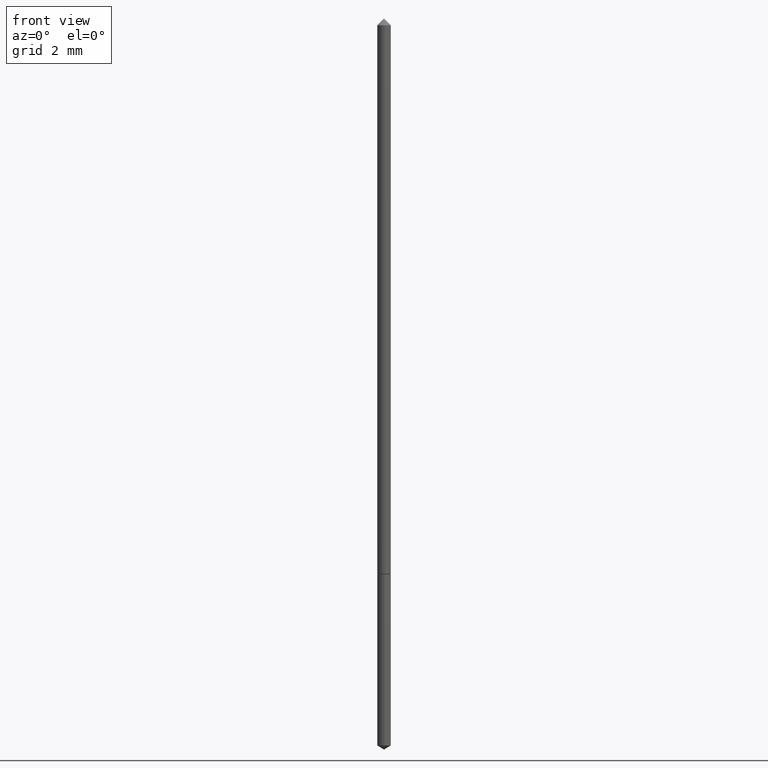
[diagram: clean part render]
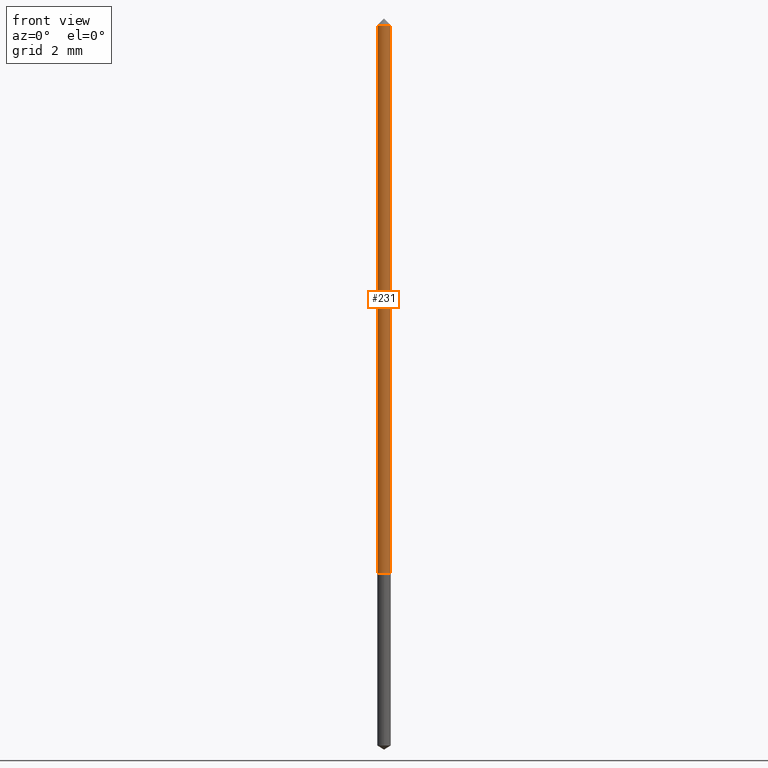
[diagram: same view with one face highlighted and labeled with its STEP entity id]
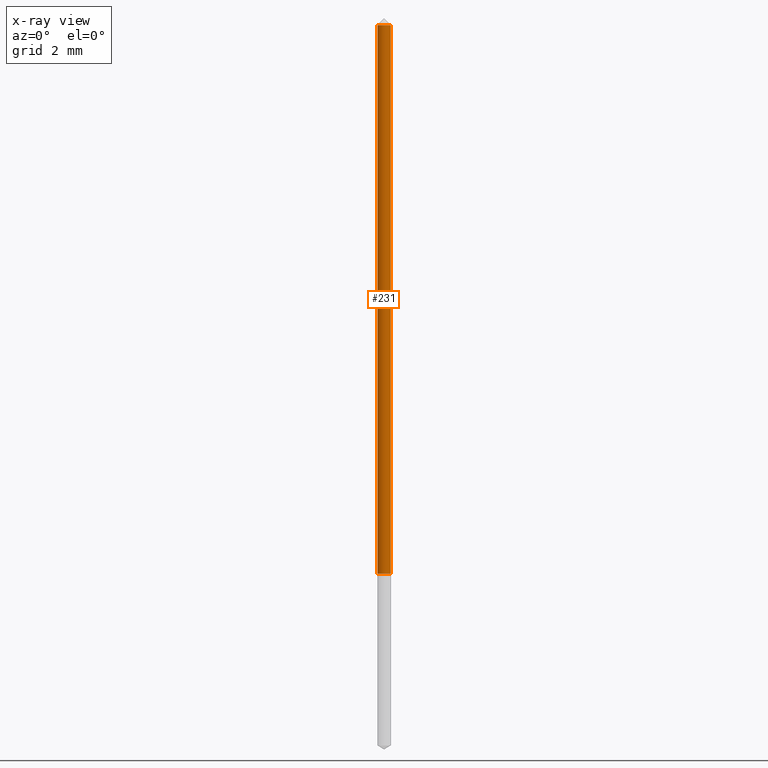
[diagram: x-ray of the same camera — body ghosted, the highlighted face saturated]
A machine part, front view. The second image highlights one B-rep face of the part: STEP entity #231.
The next image is the same camera in x-ray: the body ghosted, the highlighted face saturated — about 0% of this face is hidden behind the body in this view.
In plain terms, the highlighted cylindrical surface (edge-blend (fillet) strip) has radius 0.1715 mm, axis along (-0, 0, 1).
Its self-contained STEP definition (entity closure, byte-faithful):
#4 = ORIENTED_EDGE ( 'NONE', *, *, #35, .F. ) ;
#8 = DIRECTION ( 'NONE',  ( -2.445468806185136597E-29, 3.491481338843145583E-15, 1.000000000000000000 ) ) ;
#9 = EDGE_CURVE ( 'NONE', #336, #38, #234, .T. ) ;
#11 = ORIENTED_EDGE ( 'NONE', *, *, #42, .F. ) ;
#16 = EDGE_CURVE ( 'NONE', #38, #173, #151, .T. ) ;
#19 = DIRECTION ( 'NONE',  ( 1.000000000000000000, -6.982962677686267499E-15, 0.000000000000000000 ) ) ;
#35 = EDGE_CURVE ( 'NONE', #336, #305, #45, .T. ) ;
#38 = VERTEX_POINT ( 'NONE', #320 ) ;
#40 = DIRECTION ( 'NONE',  ( 1.000000000000000000, -6.982962677686260400E-15, 0.000000000000000000 ) ) ;
#42 = EDGE_CURVE ( 'NONE', #305, #173, #85, .T. ) ;
#45 = LINE ( 'NONE', #275, #191 ) ;
#54 = AXIS2_PLACEMENT_3D ( 'NONE', #331, #70, #159 ) ;
#70 = DIRECTION ( 'NONE',  ( -2.445468806185136597E-29, 3.491481338843145583E-15, 1.000000000000000000 ) ) ;
#85 = CIRCLE ( 'NONE', #122, 0.006750000000000004260 ) ;
#105 = CYLINDRICAL_SURFACE ( 'NONE', #54, 0.006750000000000037220 ) ;
#121 = DIRECTION ( 'NONE',  ( -2.445468806185136597E-29, 3.491481338843145583E-15, 1.000000000000000000 ) ) ;
#122 = AXIS2_PLACEMENT_3D ( 'NONE', #149, #121, #19 ) ;
#136 = VECTOR ( 'NONE', #296, 39.37007874015748143 ) ;
#149 = CARTESIAN_POINT ( 'NONE',  ( 7.642090019328600035E-31, -1.091087918388489897E-16, -0.03125000000000020123 ) ) ;
#151 = LINE ( 'NONE', #297, #136 ) ;
#159 = DIRECTION ( 'NONE',  ( 1.000000000000000000, -6.982962677686265922E-15, 4.876176775795935793E-29 ) ) ;
#173 = VERTEX_POINT ( 'NONE', #196 ) ;
#191 = VECTOR ( 'NONE', #207, 39.37007874015748143 ) ;
#196 = CARTESIAN_POINT ( 'NONE',  ( 0.006750000000000004260, -1.562437899132313240E-16, -0.03125000000000020123 ) ) ;
#199 = CARTESIAN_POINT ( 'NONE',  ( -0.006750000000000070180, -1.961385875840423280E-15, -0.5755000000000001226 ) ) ;
#207 = DIRECTION ( 'NONE',  ( -2.445468806185136877E-29, 3.491481338843145188E-15, 1.000000000000000000 ) ) ;
#216 = CARTESIAN_POINT ( 'NONE',  ( 1.407367297959546289E-29, -2.009347510504230677E-15, -0.5755000000000001226 ) ) ;
#217 = FACE_OUTER_BOUND ( 'NONE', #249, .T. ) ;
#228 = AXIS2_PLACEMENT_3D ( 'NONE', #216, #8, #40 ) ;
#231 = ADVANCED_FACE ( 'NONE', ( #217 ), #105, .T. ) ;
#232 = CARTESIAN_POINT ( 'NONE',  ( -0.006750000000000004260, -1.011266516507730717E-15, -0.03125000000000020123 ) ) ;
#234 = CIRCLE ( 'NONE', #228, 0.006750000000000070180 ) ;
#249 = EDGE_LOOP ( 'NONE', ( #4, #292, #284, #11 ) ) ;
#275 = CARTESIAN_POINT ( 'NONE',  ( -0.006750000000000037220, 4.796163466380702701E-17, -3.320281185922079994E-31 ) ) ;
#284 = ORIENTED_EDGE ( 'NONE', *, *, #16, .T. ) ;
#292 = ORIENTED_EDGE ( 'NONE', *, *, #9, .T. ) ;
#296 = DIRECTION ( 'NONE',  ( -2.445468806185136877E-29, 3.491481338843145188E-15, 1.000000000000000000 ) ) ;
#297 = CARTESIAN_POINT ( 'NONE',  ( 0.006750000000000037220, -4.713499807438255618E-17, 3.291419323662274667E-31 ) ) ;
#305 = VERTEX_POINT ( 'NONE', #232 ) ;
#320 = CARTESIAN_POINT ( 'NONE',  ( 0.006750000000000070180, -2.056482508578613246E-15, -0.5755000000000001226 ) ) ;
#331 = CARTESIAN_POINT ( 'NONE',  ( 0.000000000000000000, 0.000000000000000000, 0.000000000000000000 ) ) ;
#336 = VERTEX_POINT ( 'NONE', #199 ) ;